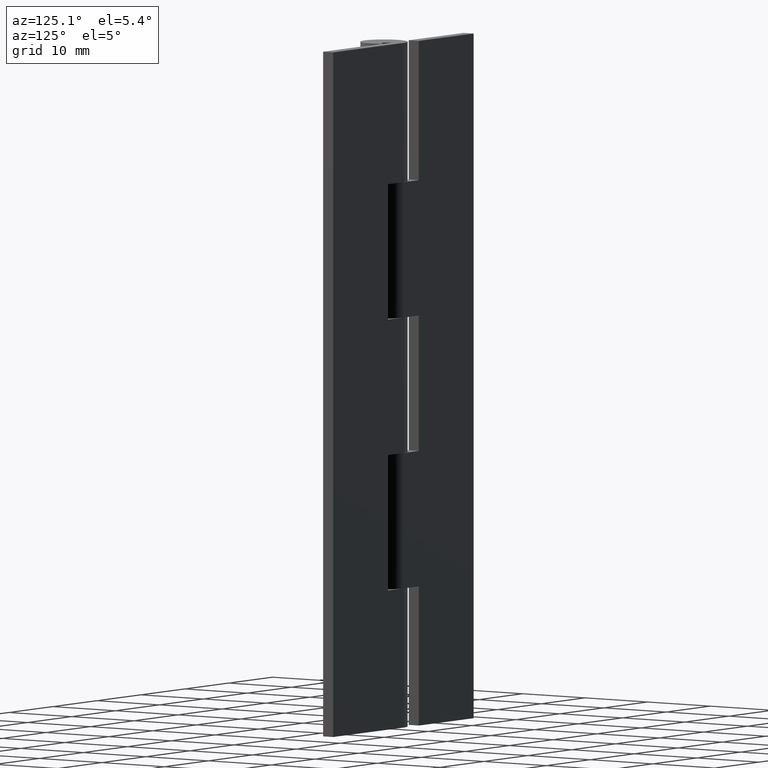
[diagram: clean part render]
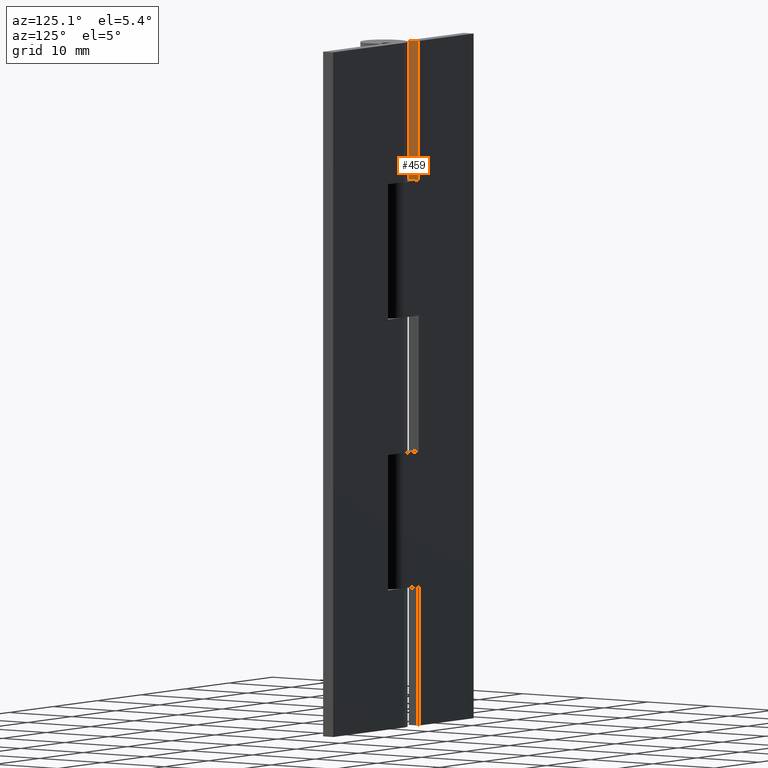
[diagram: same view with one face highlighted and labeled with its STEP entity id]
A machine part, auxiliary view. The second image highlights one B-rep face of the part: STEP entity #459.
In plain terms, the highlighted face is a freeform B-spline surface patch.
Its self-contained STEP definition (entity closure, byte-faithful):
#361=CARTESIAN_POINT('',(-3.500000000000100,3.099998000000050,71.699996999999996));
#362=VERTEX_POINT('',#361);
#368=CARTESIAN_POINT('',(-3.500000000000100,1.499999999999946,71.699996999999996));
#369=VERTEX_POINT('',#368);
#370=CARTESIAN_POINT('',(-3.500000000000100,1.499999999999946,71.699996999999996));
#371=CARTESIAN_POINT('',(-3.500000000000100,3.099998000000050,71.699996999999996));
#372=QUASI_UNIFORM_CURVE('',1,(#370,#371),.UNSPECIFIED.,.F.,.U.);
#373=EDGE_CURVE('',#369,#362,#372,.T.);
#432=CARTESIAN_POINT('',(-3.500000000000100,1.420080103001048,90.914085114381038));
#433=CARTESIAN_POINT('',(-3.500000000000100,1.420080103001048,70.785911394774629));
#434=CARTESIAN_POINT('',(-3.500000000000100,3.179917939914239,90.914085114381038));
#435=CARTESIAN_POINT('',(-3.500000000000100,3.179917939914239,70.785911394774629));
#436=B_SPLINE_SURFACE_WITH_KNOTS('',1,1,((#432,#434),(#433,#435)),.UNSPECIFIED.,.F.,.F.,.U.,(2,2),(2,2),(0.0,20.128173719606409),(0.041708334948495,0.958291687403247),.UNSPECIFIED.);
#437=CARTESIAN_POINT('',(-3.500000000000100,1.499999999999946,90.0));
#438=VERTEX_POINT('',#437);
#439=CARTESIAN_POINT('',(-3.500000000000100,1.499999999999946,90.0));
#440=CARTESIAN_POINT('',(-3.500000000000100,1.499999999999946,71.699996999999996));
#441=QUASI_UNIFORM_CURVE('',1,(#439,#440),.UNSPECIFIED.,.F.,.U.);
#442=EDGE_CURVE('',#438,#369,#441,.T.);
#443=ORIENTED_EDGE('',*,*,#442,.T.);
#444=ORIENTED_EDGE('',*,*,#373,.T.);
#445=CARTESIAN_POINT('',(-3.500000000000100,3.099998000000000,90.0));
#446=VERTEX_POINT('',#445);
#447=CARTESIAN_POINT('',(-3.500000000000100,3.099998000000000,90.0));
#448=CARTESIAN_POINT('',(-3.500000000000100,3.099998000000050,71.699996999999996));
#449=QUASI_UNIFORM_CURVE('',1,(#447,#448),.UNSPECIFIED.,.F.,.U.);
#450=EDGE_CURVE('',#446,#362,#449,.T.);
#451=ORIENTED_EDGE('',*,*,#450,.F.);
#452=CARTESIAN_POINT('',(-3.500000000000100,1.499999999999946,90.0));
#453=CARTESIAN_POINT('',(-3.500000000000100,3.099998000000000,90.0));
#454=QUASI_UNIFORM_CURVE('',1,(#452,#453),.UNSPECIFIED.,.F.,.U.);
#455=EDGE_CURVE('',#438,#446,#454,.T.);
#456=ORIENTED_EDGE('',*,*,#455,.F.);
#457=EDGE_LOOP('',(#443,#444,#451,#456));
#458=FACE_OUTER_BOUND('',#457,.T.);
#459=ADVANCED_FACE('',(#458),#436,.T.);